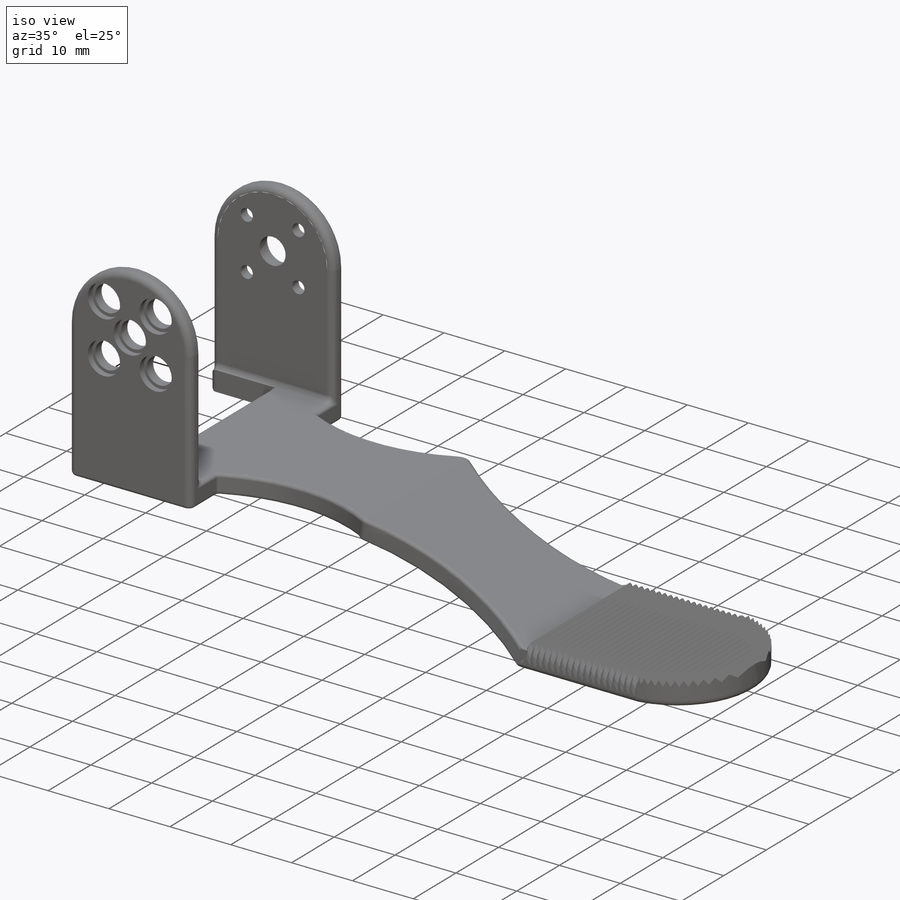
[diagram: iso view]
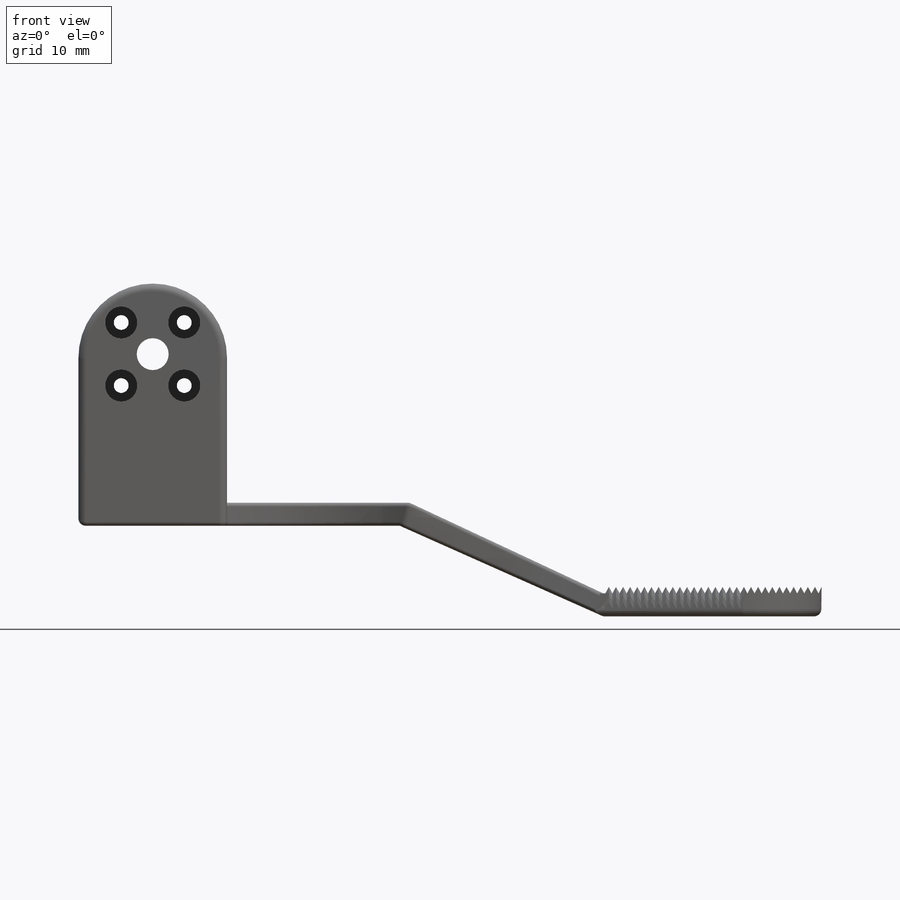
[diagram: front view]
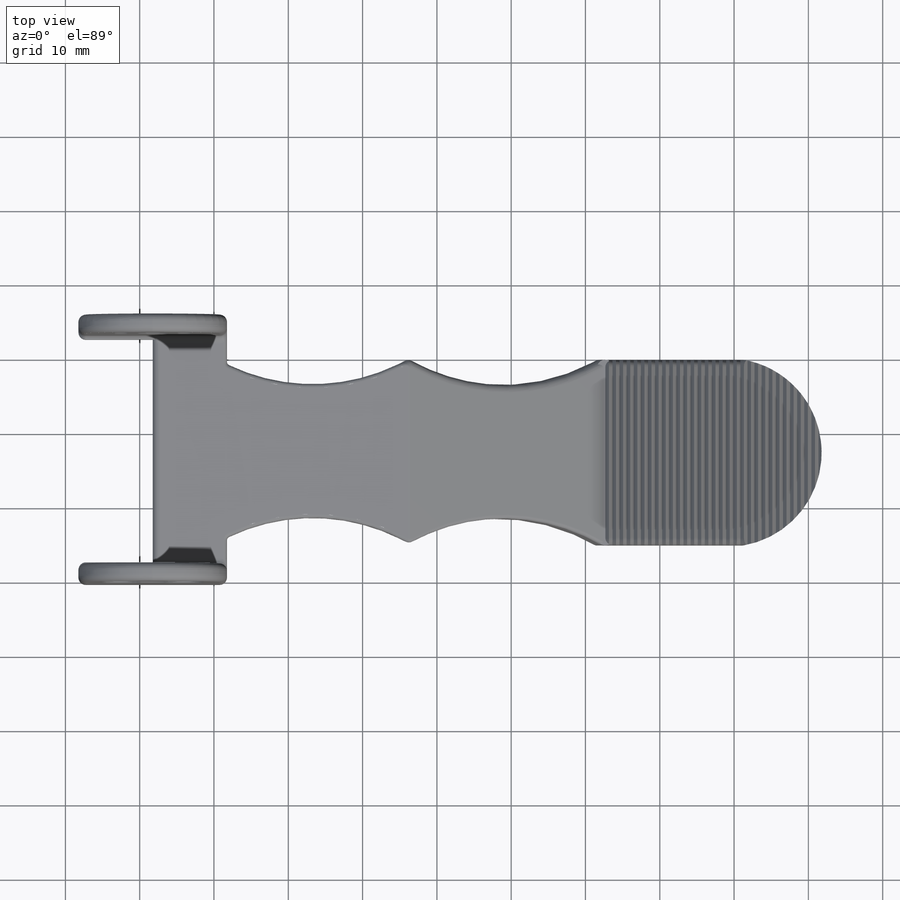
[diagram: top view]
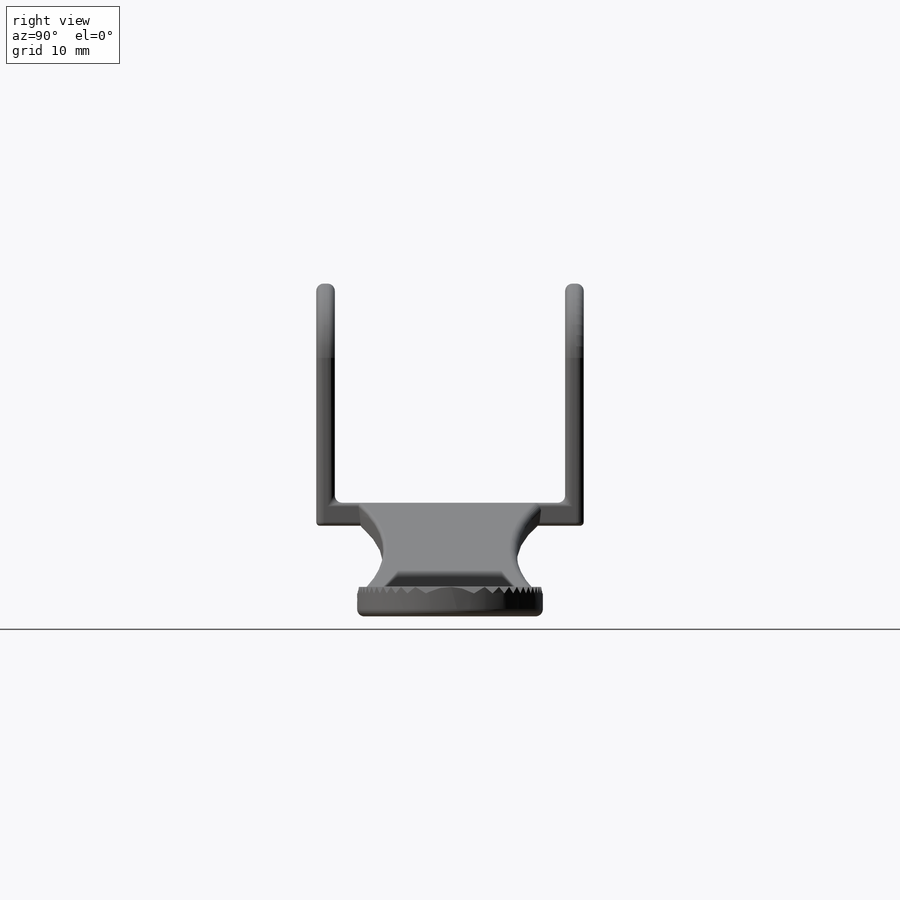
[diagram: right view]
SOLIDWORKS PART (.sldprt)
format: sldprt  version: not decoded by parser v0  size: 1,433,600 bytes
history: native  units: mm
features: fillet x22, sketch x15, cut_extrude x10, plane x3, extrude x3, material x1 (+9 scaffold rows collapsed)
feature tree (63):
  scaffold x9  (default folders/planes/origin — collapsed)
  material  "Material <sin especificar>"
  plane  "Alzado"
  plane  "Planta"
  plane  "Vista lateral"
  sketch  "Croquis3"  dims[c1.D5=1.55mm c1.D1=35.0mm c1.D2=30.0mm c1.D3=35.0mm c2.D3=156.0deg c2.D4=3.1mm c2.D5=3.1mm c2.D1=55.0mm c3.D5=~29.374223mm]
  extrude  "Saliente-Extruir1"  Depth=25mm
  sketch  "Croquis5"  dims[D1=~23.529897mm]
  sketch  "Croquis7"  dims[D1=3.5mm]
  cut_extrude  "Cortar-Extruir7"  Depth=22mm
  sketch  "Croquis9"  dims[c1.D1=~4.328296mm c1.D3=~11.381608mm c2.D1=3.5mm c2.D2=26.09mm c2.D3=~8.150542mm]
  cut_extrude  "Cortar-Extruir8"  [1 undecoded]
  fillet  "Redondeo4"  Radius=1mm
  fillet  "Redondeo23"  Radius=1mm
  fillet  "Redondeo21"  Radius=1mm
  sketch  "Croquis25"  dims[D1=~0.956335mm]
  extrude  "Saliente-Extruir4"  [1 undecoded]
  cut_extrude  "Cortar-Extruir16"  [1 undecoded]
  fillet  "Redondeo8"  Radius=1mm
  fillet  "Redondeo12"  Radius=1mm
  fillet  "Redondeo24"  Radius=1mm
  fillet  "Redondeo25"  Radius=1mm
  fillet  "Redondeo26"  Radius=1mm
  fillet  "Redondeo27"  Radius=1mm
  fillet  "Redondeo28"  Radius=0.5mm
  fillet  "Redondeo29"  Radius=0.5mm
  fillet  "Redondeo30"  Radius=0.5mm
  fillet  "Redondeo31"  Radius=0.5mm
  fillet  "Redondeo32"  Radius=0.5mm
  fillet  "Redondeo16"  Radius=0.5mm
  sketch  "Croquis16"  dims[c1.D1=21.0mm c1.D2=~20.745359mm c2.D1=20.0mm c2.D2=~8.485281mm]
  sketch  "Croquis18"  dims[c1.D1=~19.332723mm c1.D2=~19.706122mm c2.D1=20.0mm c2.D2=36.0mm c2.D3=21.75mm]
  extrude  "Saliente-Extruir3"  Depth=29.5mm
  sketch  "Croquis20"  dims[D1=~2.477789mm]
  cut_extrude  "Cortar-Extruir10"  Depth=34.5mm
  sketch  "Croquis26"  dims[D1=20.0mm D2=20.0mm]
  sketch  "Croquis21"  dims[c1.D1=~29.951634mm c1.D2=~25.023527mm c2.D1=31.0mm]
  cut_extrude  "Cortar-Extruir11"  [1 undecoded]
  sketch  "Croquis22"  dims[c1.D1=6.0mm c1.D5=~1.462129mm c2.D1=6.0mm c3.D1=90.0deg c4.D1=6.0mm c5.D1=45.0deg c5.D2=6.0mm c6.D2=45.0deg c6.D3=6.0mm c7.D3=45.0deg c7.D4=6.0mm c8.D4=45.0deg c8.D5=~4.242641mm]
  cut_extrude  "Cortar-Extruir12"  [1 undecoded]
  sketch  "Croquis23"  dims[c1.D1=~30.140866mm c1.D2=20.0mm c2.D1=30.0mm]
  cut_extrude  "Cortar-Extruir13"  [1 undecoded]
  cut_extrude  "Cortar-Extruir14"  [1 undecoded]
  sketch  "Croquis22<3>"  dims[D1=1.0mm]
  fillet  "Redondeo35"  Radius=10mm
  fillet  "Redondeo36"  Radius=1mm
  fillet  "Redondeo37"  Radius=0.5mm
  fillet  "Redondeo38"  Radius=1mm
  sketch  "Croquis24"  dims[D1=5.3mm]
  cut_extrude  "Cortar-Extruir15"  Depth=1mm
  fillet  "Redondeo39"  Radius=1mm
  fillet  "Redondeo40"  Radius=1mm
  fillet  "Redondeo41"  Radius=1mm
  sketch  "Croquis27"  dims[D1=4.3mm]
  cut_extrude  "Cortar-Extruir17"  [1 undecoded]
decode coverage: 42 of 50 modeling features carry decoded parameters
note: ~ marks probable driven/reference dimensions
note: 8 parameter values undecoded
summary: no parameter record found for 8 features
note: suppression state not decoded; provenance and decode notes live in map.json
